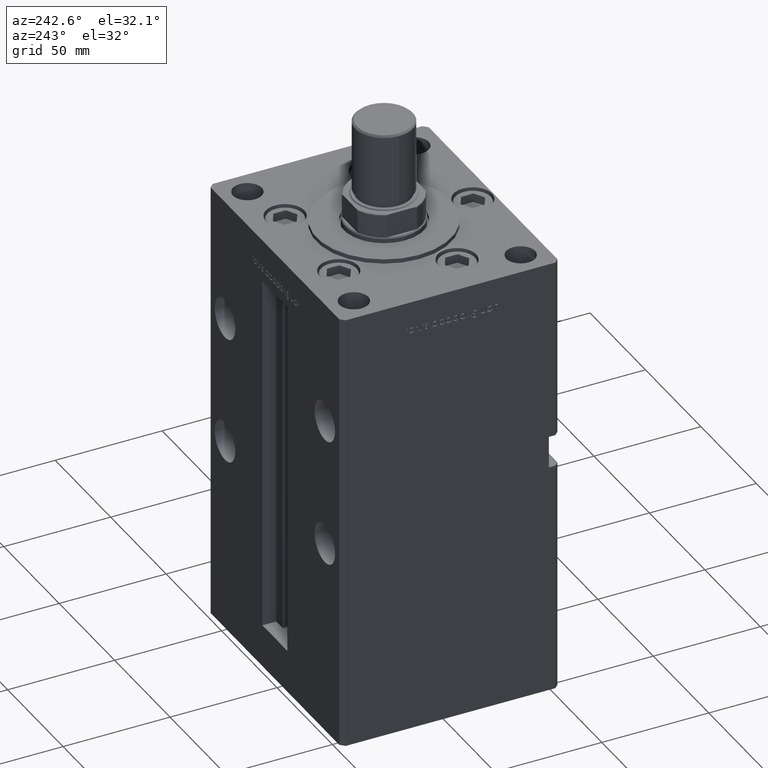
[diagram: clean part render]
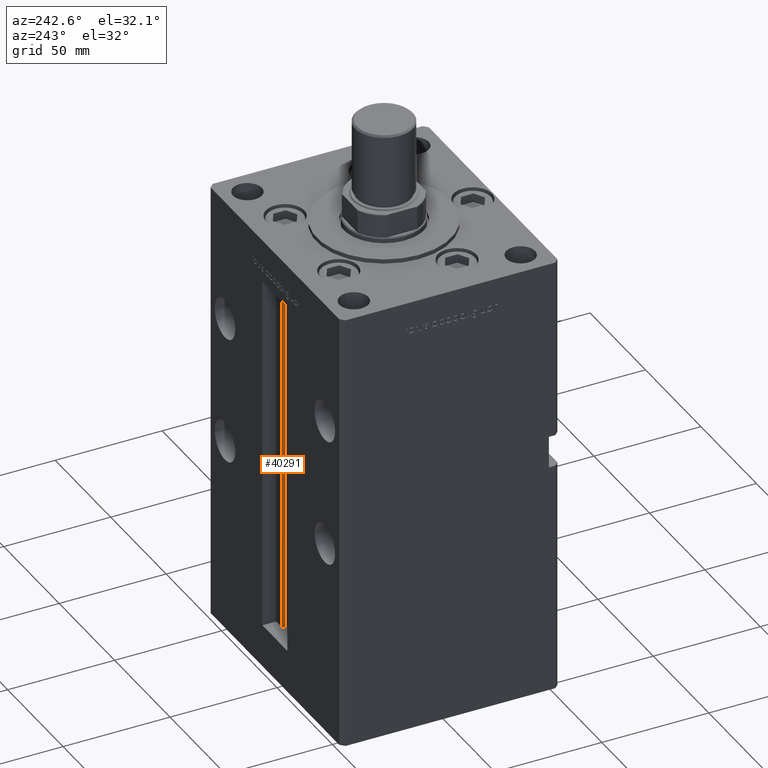
[diagram: same view with one face highlighted and labeled with its STEP entity id]
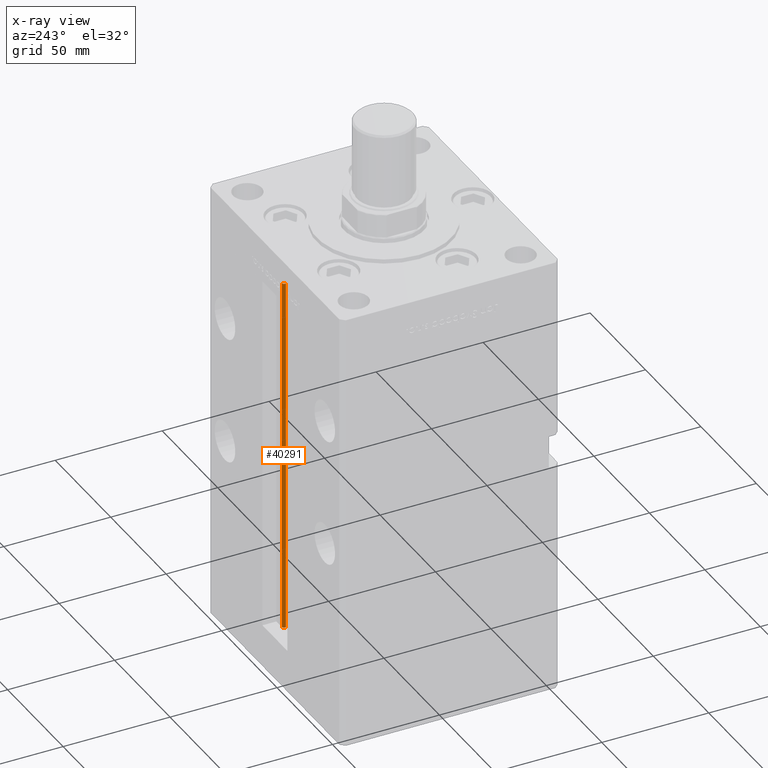
[diagram: x-ray of the same camera — body ghosted, the highlighted face saturated]
A machine part, auxiliary view. The second image highlights one B-rep face of the part: STEP entity #40291.
The next image is the same camera in x-ray: the body ghosted, the highlighted face saturated — about 0% of this face is hidden behind the body in this view.
In plain terms, the highlighted cylindrical surface (edge-blend (fillet) strip) has radius 0.9333 mm, axis along (0, 0, 1).
Its self-contained STEP definition (entity closure, byte-faithful):
#3333 = DIRECTION ( 'NONE',  ( 1.000000000000000000, 0.000000000000000000, 0.000000000000000000 ) ) ;
#5340 = AXIS2_PLACEMENT_3D ( 'NONE', #25964, #51372, #42978 ) ;
#7564 = VERTEX_POINT ( 'NONE', #24198 ) ;
#8053 = DIRECTION ( 'NONE',  ( 0.000000000000000000, 0.000000000000000000, -1.000000000000000000 ) ) ;
#8192 = AXIS2_PLACEMENT_3D ( 'NONE', #25596, #8053, #49931 ) ;
#8843 = EDGE_CURVE ( 'NONE', #45035, #48565, #28082, .T. ) ;
#10260 = LINE ( 'NONE', #46742, #49484 ) ;
#10888 = CARTESIAN_POINT ( 'NONE',  ( 5.375042956467945388, 43.09999999999899956, 0.000000000000000000 ) ) ;
#11675 = EDGE_LOOP ( 'NONE', ( #23035, #32467, #29621, #29722 ) ) ;
#12579 = VERTEX_POINT ( 'NONE', #42088 ) ;
#12777 = AXIS2_PLACEMENT_3D ( 'NONE', #36038, #24158, #3333 ) ;
#16162 = EDGE_CURVE ( 'NONE', #7564, #45035, #47911, .T. ) ;
#16371 = EDGE_CURVE ( 'NONE', #7564, #12579, #48561, .T. ) ;
#23035 = ORIENTED_EDGE ( 'NONE', *, *, #23037, .F. ) ;
#23037 = EDGE_CURVE ( 'NONE', #12579, #48565, #10260, .T. ) ;
#24158 = DIRECTION ( 'NONE',  ( -0.000000000000000000, -0.000000000000000000, 1.000000000000000000 ) ) ;
#24198 = CARTESIAN_POINT ( 'NONE',  ( 5.375042956467945388, 43.09999999999899956, 0.000000000000000000 ) ) ;
#25596 = CARTESIAN_POINT ( 'NONE',  ( 6.183333333333997928, 43.56666666666600207, 168.5000000000000000 ) ) ;
#25964 = CARTESIAN_POINT ( 'NONE',  ( 6.183333333333997928, 43.56666666666600207, 0.000000000000000000 ) ) ;
#27947 = CYLINDRICAL_SURFACE ( 'NONE', #12777, 0.9333333333340008142 ) ;
#28082 = CIRCLE ( 'NONE', #8192, 0.9333333333340008142 ) ;
#28338 = CARTESIAN_POINT ( 'NONE',  ( 5.375042956467944499, 43.09999999999899956, 168.5000000000000000 ) ) ;
#29621 = ORIENTED_EDGE ( 'NONE', *, *, #16162, .T. ) ;
#29722 = ORIENTED_EDGE ( 'NONE', *, *, #8843, .T. ) ;
#32467 = ORIENTED_EDGE ( 'NONE', *, *, #16371, .F. ) ;
#36038 = CARTESIAN_POINT ( 'NONE',  ( 6.183333333333997928, 43.56666666666600207, 0.000000000000000000 ) ) ;
#38628 = DIRECTION ( 'NONE',  ( -0.000000000000000000, -0.000000000000000000, 1.000000000000000000 ) ) ;
#40291 = ADVANCED_FACE ( 'NONE', ( #44688 ), #27947, .T. ) ;
#42088 = CARTESIAN_POINT ( 'NONE',  ( 6.183333333333997928, 44.50000000000000711, 0.000000000000000000 ) ) ;
#42978 = DIRECTION ( 'NONE',  ( 1.000000000000000000, 0.000000000000000000, 0.000000000000000000 ) ) ;
#43854 = DIRECTION ( 'NONE',  ( -0.000000000000000000, -0.000000000000000000, 1.000000000000000000 ) ) ;
#44688 = FACE_OUTER_BOUND ( 'NONE', #11675, .T. ) ;
#45035 = VERTEX_POINT ( 'NONE', #28338 ) ;
#46742 = CARTESIAN_POINT ( 'NONE',  ( 6.183333333333997928, 44.50000000000000711, 0.000000000000000000 ) ) ;
#47911 = LINE ( 'NONE', #10888, #51994 ) ;
#48561 = CIRCLE ( 'NONE', #5340, 0.9333333333340008142 ) ;
#48565 = VERTEX_POINT ( 'NONE', #52436 ) ;
#49484 = VECTOR ( 'NONE', #38628, 1000.000000000000000 ) ;
#49931 = DIRECTION ( 'NONE',  ( 1.000000000000000000, 0.000000000000000000, 0.000000000000000000 ) ) ;
#51372 = DIRECTION ( 'NONE',  ( -0.000000000000000000, -0.000000000000000000, -1.000000000000000000 ) ) ;
#51994 = VECTOR ( 'NONE', #43854, 1000.000000000000000 ) ;
#52436 = CARTESIAN_POINT ( 'NONE',  ( 6.183333333333997928, 44.50000000000000711, 168.5000000000000000 ) ) ;